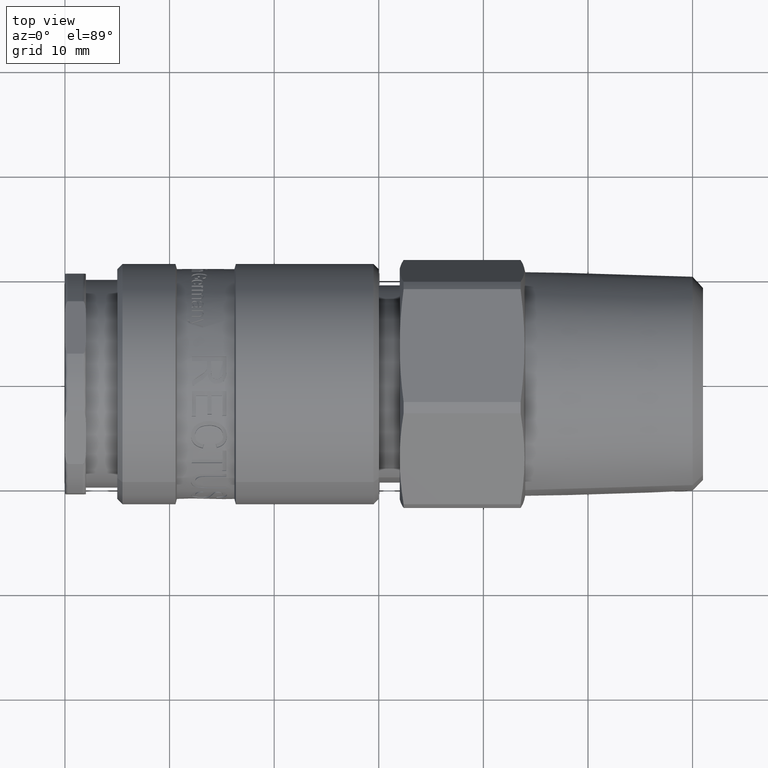
[diagram: clean part render]
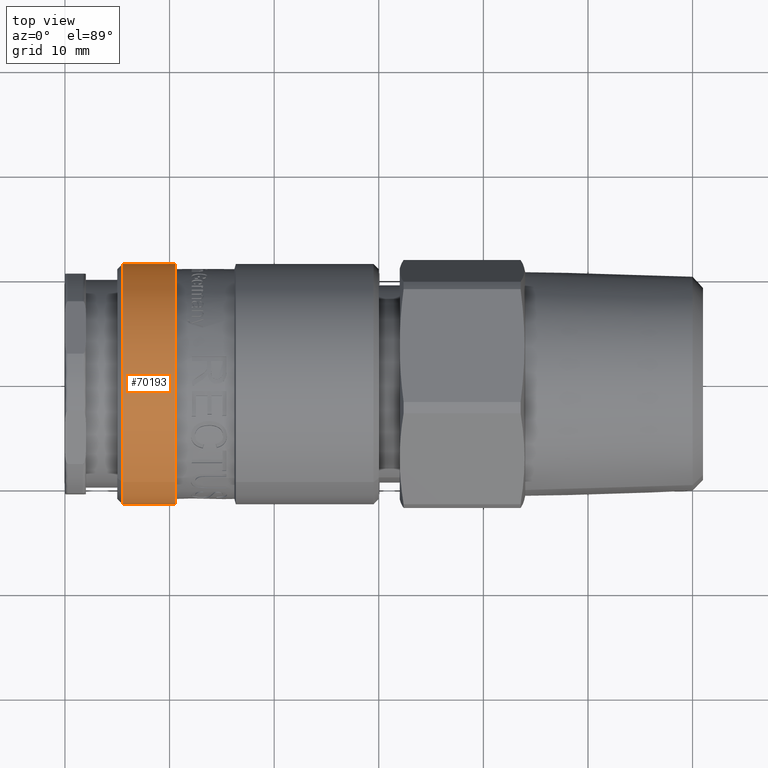
[diagram: same view with one face highlighted and labeled with its STEP entity id]
A machine part, top view. The second image highlights one B-rep face of the part: STEP entity #70193.
In plain terms, the highlighted cylindrical surface (bore or boss wall) has radius 11.5 mm, axis along (1, 0, 0).
Its self-contained STEP definition (entity closure, byte-faithful):
#70162=CARTESIAN_POINT('',(5.500000000000002,-9.500442652498441,6.480091774549834));
#70163=VERTEX_POINT('',#70162);
#70164=CARTESIAN_POINT('',(5.500000000000002,0.0,0.0));
#70165=DIRECTION('',(-1.0,0.0,0.0));
#70166=DIRECTION('',(0.0,0.826125448043343,-0.563486241265203));
#70167=AXIS2_PLACEMENT_3D('',#70164,#70165,#70166);
#70168=CIRCLE('',#70167,11.5);
#70169=EDGE_CURVE('',#70163,#70163,#70168,.T.);
#70174=CARTESIAN_POINT('',(7.78301270189222,0.0,0.0));
#70175=DIRECTION('',(1.0,0.0,0.0));
#70176=DIRECTION('',(0.0,-0.826125448043343,0.563486241265203));
#70177=AXIS2_PLACEMENT_3D('',#70174,#70175,#70176);
#70178=CYLINDRICAL_SURFACE('',#70177,11.500000000000002);
#70179=CARTESIAN_POINT('',(10.566025403784439,-9.500442652498442,6.480091774549833));
#70180=VERTEX_POINT('',#70179);
#70181=CARTESIAN_POINT('',(10.566025403784439,0.0,0.0));
#70182=DIRECTION('',(1.0,0.0,0.0));
#70183=DIRECTION('',(0.0,-0.826125448043343,0.563486241265203));
#70184=AXIS2_PLACEMENT_3D('',#70181,#70182,#70183);
#70185=CIRCLE('',#70184,11.5);
#70186=EDGE_CURVE('',#70180,#70180,#70185,.T.);
#70187=ORIENTED_EDGE('',*,*,#70186,.F.);
#70188=EDGE_LOOP('',(#70187));
#70189=FACE_OUTER_BOUND('',#70188,.T.);
#70190=ORIENTED_EDGE('',*,*,#70169,.F.);
#70191=EDGE_LOOP('',(#70190));
#70192=FACE_BOUND('',#70191,.T.);
#70193=ADVANCED_FACE('',(#70189,#70192),#70178,.T.);